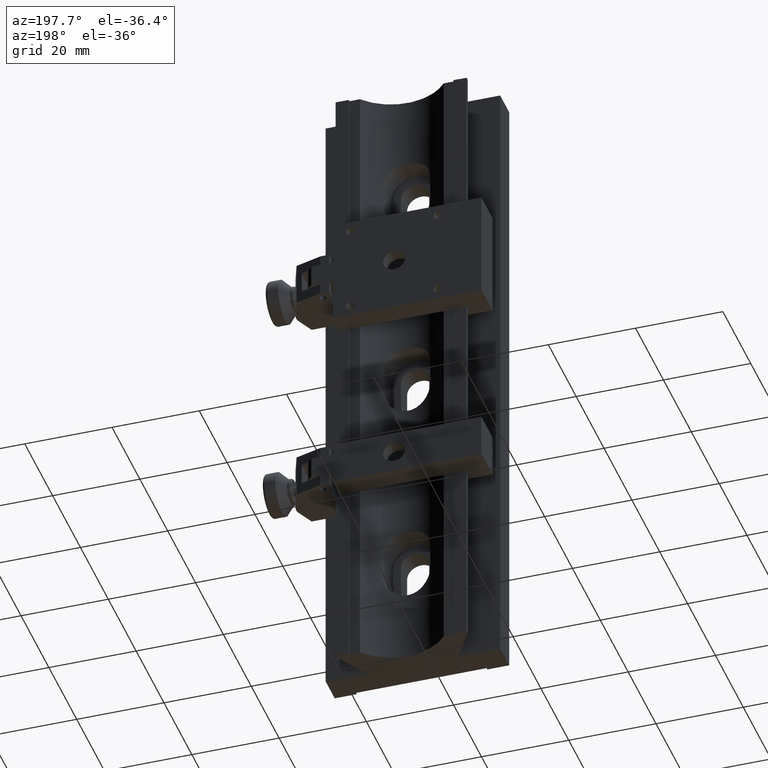
[diagram: clean part render]
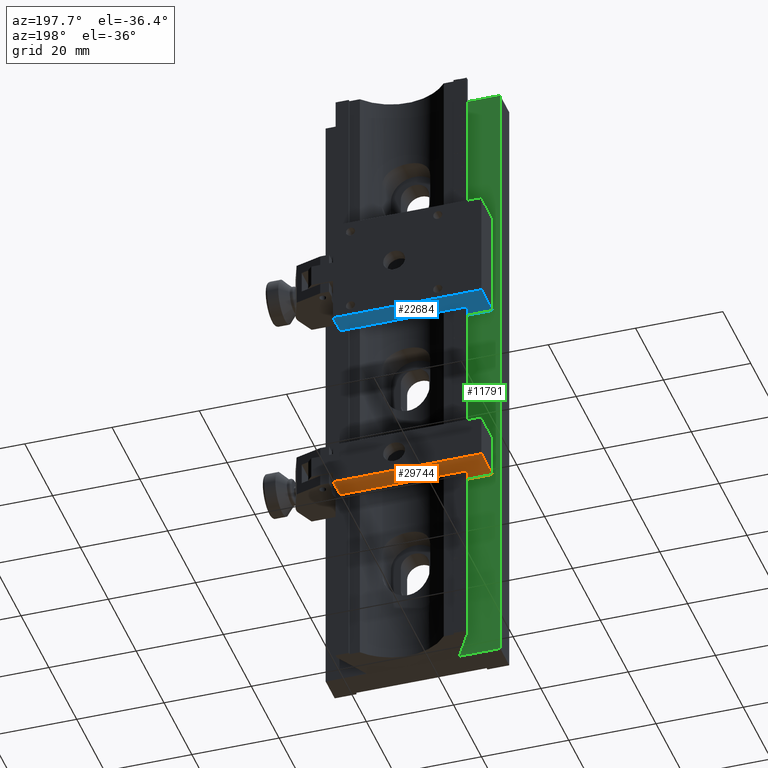
[diagram: same view with three faces highlighted in distinct colors, each labeled with its STEP entity id]
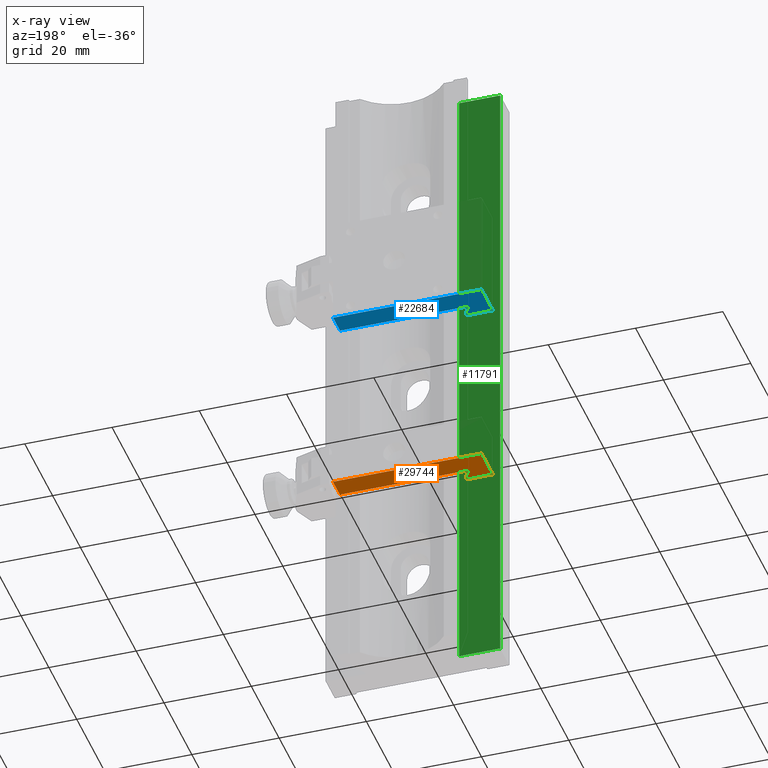
[diagram: x-ray of the same camera — body ghosted, the three highlighted faces saturated]
A machine part, auxiliary view with three faces highlighted in distinct colors.
The next image is the same camera in x-ray (body ghosted, the three faces saturated) — at least one of them is partly hidden behind the body in this view.
Their STEP definitions:

[orange] entity #29744 — the highlighted planar face has unit normal (0, -0, 1).
#50 = DIRECTION ( 'NONE',  ( 0.000000000000000000, 1.000000000000000000, 0.000000000000000000 ) ) ;
#1246 = LINE ( 'NONE', #33715, #22298 ) ;
#1714 = CARTESIAN_POINT ( 'NONE',  ( -161.0211503403899940, 7.134238011305916061, -31.65049300779228147 ) ) ;
#1716 = CARTESIAN_POINT ( 'NONE',  ( -190.5211503403899940, 2.134238011305911176, -31.65049300779228147 ) ) ;
#2634 = ORIENTED_EDGE ( 'NONE', *, *, #15353, .F. ) ;
#4168 = EDGE_CURVE ( 'NONE', #42481, #48827, #35824, .T. ) ;
#5347 = CARTESIAN_POINT ( 'NONE',  ( -161.0211503403899940, 7.134238011305916061, -31.65049300779228147 ) ) ;
#6750 = EDGE_CURVE ( 'NONE', #17772, #34456, #34279, .T. ) ;
#8266 = LINE ( 'NONE', #49873, #20957 ) ;
#8498 = FACE_OUTER_BOUND ( 'NONE', #22739, .T. ) ;
#10032 = DIRECTION ( 'NONE',  ( -0.5000000000000003331, 0.8660254037844383745, 0.000000000000000000 ) ) ;
#10516 = VECTOR ( 'NONE', #17810, 1000.000000000000000 ) ;
#10959 = ORIENTED_EDGE ( 'NONE', *, *, #6750, .F. ) ;
#13000 = LINE ( 'NONE', #17222, #50259 ) ;
#13320 = LINE ( 'NONE', #1714, #10516 ) ;
#14662 = CARTESIAN_POINT ( 'NONE',  ( -161.0211503403899940, 2.134238011305911176, -31.65049300779228147 ) ) ;
#15353 = EDGE_CURVE ( 'NONE', #39760, #17772, #1246, .T. ) ;
#17222 = CARTESIAN_POINT ( 'NONE',  ( -188.9721122347133360, -0.5487746905861179414, -31.65049300779228147 ) ) ;
#17772 = VERTEX_POINT ( 'NONE', #36467 ) ;
#17810 = DIRECTION ( 'NONE',  ( 1.170338304741205908E-16, -1.000000000000000000, 0.000000000000000000 ) ) ;
#18972 = LINE ( 'NONE', #23460, #45059 ) ;
#19582 = PLANE ( 'NONE',  #45505 ) ;
#20141 = ORIENTED_EDGE ( 'NONE', *, *, #39845, .F. ) ;
#20957 = VECTOR ( 'NONE', #10032, 1000.000000000000114 ) ;
#22298 = VECTOR ( 'NONE', #29491, 1000.000000000000000 ) ;
#22403 = ORIENTED_EDGE ( 'NONE', *, *, #4168, .F. ) ;
#22739 = EDGE_LOOP ( 'NONE', ( #23032, #22403, #43950, #52219, #10959, #2634, #20141 ) ) ;
#23032 = ORIENTED_EDGE ( 'NONE', *, *, #40458, .T. ) ;
#23460 = CARTESIAN_POINT ( 'NONE',  ( -195.0211503403899940, 7.134238011305916061, -31.65049300779228147 ) ) ;
#29385 = DIRECTION ( 'NONE',  ( -0.7071067811865474617, -0.7071067811865474617, 9.860761315262639904E-32 ) ) ;
#29491 = DIRECTION ( 'NONE',  ( 0.000000000000000000, -1.000000000000000000, 0.000000000000000000 ) ) ;
#29565 = CARTESIAN_POINT ( 'NONE',  ( -195.0211503403899940, 7.134238011305916061, -31.65049300779228147 ) ) ;
#29744 = ADVANCED_FACE ( 'NONE', ( #8498 ), #19582, .F. ) ;
#33222 = EDGE_CURVE ( 'NONE', #50061, #42481, #8266, .T. ) ;
#33715 = CARTESIAN_POINT ( 'NONE',  ( -195.0211503403899940, 7.134238011305916061, -31.65049300779228147 ) ) ;
#34279 = LINE ( 'NONE', #44894, #38288 ) ;
#34456 = VERTEX_POINT ( 'NONE', #40412 ) ;
#35673 = CARTESIAN_POINT ( 'NONE',  ( -175.0211503403900224, 2.134238011305911176, -31.65049300779228147 ) ) ;
#35824 = LINE ( 'NONE', #51139, #38941 ) ;
#36467 = CARTESIAN_POINT ( 'NONE',  ( -195.0211503403899940, -0.8657619886940914888, -31.65049300779228147 ) ) ;
#38288 = VECTOR ( 'NONE', #44636, 1000.000000000000000 ) ;
#38941 = VECTOR ( 'NONE', #43729, 1000.000000000000000 ) ;
#39760 = VERTEX_POINT ( 'NONE', #29565 ) ;
#39845 = EDGE_CURVE ( 'NONE', #46426, #39760, #18972, .T. ) ;
#40412 = CARTESIAN_POINT ( 'NONE',  ( -189.2890995328210977, -0.8657619886940914888, -31.65049300779228147 ) ) ;
#40458 = EDGE_CURVE ( 'NONE', #46426, #48827, #13320, .T. ) ;
#42106 = EDGE_CURVE ( 'NONE', #50061, #34456, #13000, .T. ) ;
#42481 = VERTEX_POINT ( 'NONE', #1716 ) ;
#43729 = DIRECTION ( 'NONE',  ( 1.000000000000000000, 1.242535447991763963E-32, -2.430865342914508479E-63 ) ) ;
#43950 = ORIENTED_EDGE ( 'NONE', *, *, #33222, .F. ) ;
#44636 = DIRECTION ( 'NONE',  ( 1.000000000000000000, 0.000000000000000000, 0.000000000000000000 ) ) ;
#44894 = CARTESIAN_POINT ( 'NONE',  ( -195.0211503403899940, -0.8657619886940914888, -31.65049300779228147 ) ) ;
#45059 = VECTOR ( 'NONE', #47195, 1000.000000000000000 ) ;
#45505 = AXIS2_PLACEMENT_3D ( 'NONE', #35673, #48315, #50 ) ;
#46426 = VERTEX_POINT ( 'NONE', #5347 ) ;
#47195 = DIRECTION ( 'NONE',  ( -1.000000000000000000, 0.000000000000000000, -0.000000000000000000 ) ) ;
#48315 = DIRECTION ( 'NONE',  ( 0.000000000000000000, -0.000000000000000000, 1.000000000000000000 ) ) ;
#48827 = VERTEX_POINT ( 'NONE', #14662 ) ;
#49873 = CARTESIAN_POINT ( 'NONE',  ( -188.7890995328210977, -0.8657619886940914888, -31.65049300779228147 ) ) ;
#50061 = VERTEX_POINT ( 'NONE', #52193 ) ;
#50259 = VECTOR ( 'NONE', #29385, 1000.000000000000114 ) ;
#51139 = CARTESIAN_POINT ( 'NONE',  ( -190.5211503403899940, 2.134238011305911176, -31.65049300779228147 ) ) ;
#52193 = CARTESIAN_POINT ( 'NONE',  ( -188.9721122347133360, -0.5487746905861179414, -31.65049300779228147 ) ) ;
#52219 = ORIENTED_EDGE ( 'NONE', *, *, #42106, .T. ) ;

[blue] entity #22684 — the highlighted planar face has unit normal (0, 0, 1).
#2248 = DIRECTION ( 'NONE',  ( -0.7071067811865474617, -0.7071067811865474617, -0.000000000000000000 ) ) ;
#3339 = DIRECTION ( 'NONE',  ( -0.5000000000000003331, 0.8660254037844383745, 0.000000000000000000 ) ) ;
#3385 = CARTESIAN_POINT ( 'NONE',  ( -161.0211503403899940, 7.134238011306026195, 12.83903253372700703 ) ) ;
#3633 = EDGE_LOOP ( 'NONE', ( #26921, #17113, #43574, #39537, #42041, #48548, #33609 ) ) ;
#3847 = LINE ( 'NONE', #19957, #36818 ) ;
#5243 = LINE ( 'NONE', #46126, #48477 ) ;
#5471 = LINE ( 'NONE', #21315, #21435 ) ;
#7304 = LINE ( 'NONE', #39491, #18653 ) ;
#7763 = PLANE ( 'NONE',  #18232 ) ;
#7956 = VECTOR ( 'NONE', #2248, 1000.000000000000114 ) ;
#8625 = VERTEX_POINT ( 'NONE', #45168 ) ;
#10674 = CARTESIAN_POINT ( 'NONE',  ( -190.5211503403899940, 2.134238011306022198, 12.83903253372700703 ) ) ;
#11792 = EDGE_CURVE ( 'NONE', #44630, #16045, #22583, .T. ) ;
#11916 = VECTOR ( 'NONE', #39433, 1000.000000000000000 ) ;
#15356 = EDGE_CURVE ( 'NONE', #47383, #49536, #5471, .T. ) ;
#15394 = LINE ( 'NONE', #48656, #11916 ) ;
#16045 = VERTEX_POINT ( 'NONE', #50879 ) ;
#17113 = ORIENTED_EDGE ( 'NONE', *, *, #15356, .F. ) ;
#17380 = DIRECTION ( 'NONE',  ( -1.000000000000000000, 0.000000000000000000, 0.000000000000000000 ) ) ;
#17557 = DIRECTION ( 'NONE',  ( 1.000000000000000000, 0.000000000000000000, 0.000000000000000000 ) ) ;
#18232 = AXIS2_PLACEMENT_3D ( 'NONE', #35741, #32047, #51821 ) ;
#18653 = VECTOR ( 'NONE', #3339, 1000.000000000000114 ) ;
#19957 = CARTESIAN_POINT ( 'NONE',  ( -195.0211503403899940, 7.134238011306026195, 12.83903253372700703 ) ) ;
#21315 = CARTESIAN_POINT ( 'NONE',  ( -190.5211503403899940, 2.134238011306022198, 12.83903253372700703 ) ) ;
#21435 = VECTOR ( 'NONE', #45822, 1000.000000000000000 ) ;
#21496 = CARTESIAN_POINT ( 'NONE',  ( -195.0211503403899940, -0.8657619886939804665, 12.83903253372700703 ) ) ;
#22583 = LINE ( 'NONE', #42103, #7956 ) ;
#22684 = ADVANCED_FACE ( 'NONE', ( #36806 ), #7763, .F. ) ;
#26921 = ORIENTED_EDGE ( 'NONE', *, *, #27480, .T. ) ;
#27070 = EDGE_CURVE ( 'NONE', #44630, #47383, #7304, .T. ) ;
#27480 = EDGE_CURVE ( 'NONE', #50088, #49536, #15394, .T. ) ;
#32047 = DIRECTION ( 'NONE',  ( 0.000000000000000000, 0.000000000000000000, 1.000000000000000000 ) ) ;
#33609 = ORIENTED_EDGE ( 'NONE', *, *, #47812, .F. ) ;
#33859 = CARTESIAN_POINT ( 'NONE',  ( -161.0211503403899940, 2.134238011306022198, 12.83903253372700703 ) ) ;
#35741 = CARTESIAN_POINT ( 'NONE',  ( -175.0211503403900224, 2.134238011306022198, 12.83903253372700703 ) ) ;
#36181 = VERTEX_POINT ( 'NONE', #21496 ) ;
#36806 = FACE_OUTER_BOUND ( 'NONE', #3633, .T. ) ;
#36818 = VECTOR ( 'NONE', #51860, 1000.000000000000000 ) ;
#37552 = VECTOR ( 'NONE', #17557, 1000.000000000000000 ) ;
#39433 = DIRECTION ( 'NONE',  ( 1.170338304741205908E-16, -1.000000000000000000, 0.000000000000000000 ) ) ;
#39491 = CARTESIAN_POINT ( 'NONE',  ( -188.7890995328210977, -0.8657619886939804665, 12.83903253372700703 ) ) ;
#39537 = ORIENTED_EDGE ( 'NONE', *, *, #11792, .T. ) ;
#42041 = ORIENTED_EDGE ( 'NONE', *, *, #50175, .F. ) ;
#42094 = CARTESIAN_POINT ( 'NONE',  ( -195.0211503403899940, -0.8657619886939804665, 12.83903253372700703 ) ) ;
#42103 = CARTESIAN_POINT ( 'NONE',  ( -188.9721122347133360, -0.5487746905860069191, 12.83903253372700703 ) ) ;
#43201 = EDGE_CURVE ( 'NONE', #8625, #36181, #3847, .T. ) ;
#43574 = ORIENTED_EDGE ( 'NONE', *, *, #27070, .F. ) ;
#44630 = VERTEX_POINT ( 'NONE', #46769 ) ;
#45168 = CARTESIAN_POINT ( 'NONE',  ( -195.0211503403899940, 7.134238011306026195, 12.83903253372700703 ) ) ;
#45822 = DIRECTION ( 'NONE',  ( 1.000000000000000000, 1.242535447991763963E-32, 0.000000000000000000 ) ) ;
#46126 = CARTESIAN_POINT ( 'NONE',  ( -195.0211503403899940, 7.134238011306026195, 12.83903253372700703 ) ) ;
#46769 = CARTESIAN_POINT ( 'NONE',  ( -188.9721122347133360, -0.5487746905860069191, 12.83903253372700703 ) ) ;
#47383 = VERTEX_POINT ( 'NONE', #10674 ) ;
#47812 = EDGE_CURVE ( 'NONE', #50088, #8625, #5243, .T. ) ;
#48477 = VECTOR ( 'NONE', #17380, 1000.000000000000000 ) ;
#48548 = ORIENTED_EDGE ( 'NONE', *, *, #43201, .F. ) ;
#48656 = CARTESIAN_POINT ( 'NONE',  ( -161.0211503403899940, 7.134238011306026195, 12.83903253372700703 ) ) ;
#49536 = VERTEX_POINT ( 'NONE', #33859 ) ;
#49743 = LINE ( 'NONE', #42094, #37552 ) ;
#50088 = VERTEX_POINT ( 'NONE', #3385 ) ;
#50175 = EDGE_CURVE ( 'NONE', #36181, #16045, #49743, .T. ) ;
#50879 = CARTESIAN_POINT ( 'NONE',  ( -189.2890995328210977, -0.8657619886939804665, 12.83903253372700703 ) ) ;
#51821 = DIRECTION ( 'NONE',  ( 1.000000000000000000, 0.000000000000000000, 0.000000000000000000 ) ) ;
#51860 = DIRECTION ( 'NONE',  ( 0.000000000000000000, -1.000000000000000000, 0.000000000000000000 ) ) ;

[green] entity #11791 — the highlighted planar face has unit normal (0, -1, 0).
#970 = B_SPLINE_CURVE_WITH_KNOTS ( 'NONE', 3,
 ( #18433, #46646, #11018, #43205 ),
 .UNSPECIFIED., .F., .F.,
 ( 4, 4 ),
 ( 0.000000000000000000, 1.000000000000000000 ),
 .UNSPECIFIED. ) ;
#4469 = VERTEX_POINT ( 'NONE', #17951 ) ;
#6466 = DIRECTION ( 'NONE',  ( 0.000000000000000000, 0.000000000000000000, -1.000000000000000000 ) ) ;
#9255 = CARTESIAN_POINT ( 'NONE',  ( -185.6136730522781306, -6.365761988694000451, 75.00000000000000000 ) ) ;
#10221 = CARTESIAN_POINT ( 'NONE',  ( -195.0211503403899940, -6.365761988694000451, 75.00000000000000000 ) ) ;
#10289 = CARTESIAN_POINT ( 'NONE',  ( -185.6136730522781306, -6.365761988694000451, -75.00000000000000000 ) ) ;
#10678 = CARTESIAN_POINT ( 'NONE',  ( -195.0211503403899940, -6.365761988694000451, 75.00000000000000000 ) ) ;
#11018 = CARTESIAN_POINT ( 'NONE',  ( -191.8853245776860490, -6.365761988694000451, -75.00000000000000000 ) ) ;
#11791 = ADVANCED_FACE ( 'NONE', ( #46057 ), #42870, .F. ) ;
#12085 = EDGE_CURVE ( 'NONE', #4469, #41324, #46616, .T. ) ;
#15078 = ORIENTED_EDGE ( 'NONE', *, *, #21241, .F. ) ;
#15401 = CARTESIAN_POINT ( 'NONE',  ( -185.6136730522781306, -6.365761988694000451, -75.00000000000000000 ) ) ;
#15493 = CARTESIAN_POINT ( 'NONE',  ( -185.6136730522781306, -6.365761988694000451, 75.00000000000000000 ) ) ;
#17244 = EDGE_CURVE ( 'NONE', #22513, #4469, #970, .T. ) ;
#17951 = CARTESIAN_POINT ( 'NONE',  ( -195.0211503403899940, -6.365761988694000451, -75.00000000000000000 ) ) ;
#18433 = CARTESIAN_POINT ( 'NONE',  ( -185.6136730522781306, -6.365761988694000451, -75.00000000000000000 ) ) ;
#20052 = EDGE_CURVE ( 'NONE', #22513, #39862, #42809, .T. ) ;
#21241 = EDGE_CURVE ( 'NONE', #39862, #41324, #45236, .T. ) ;
#22513 = VERTEX_POINT ( 'NONE', #15401 ) ;
#22780 = CARTESIAN_POINT ( 'NONE',  ( -195.0211503403899940, -6.365761988694000451, -25.00000000000000000 ) ) ;
#23987 = CARTESIAN_POINT ( 'NONE',  ( -188.7494988149821040, -6.365761988694000451, 75.00000000000000000 ) ) ;
#24258 = CARTESIAN_POINT ( 'NONE',  ( -185.6136730522781306, -6.365761988694000451, 75.00000000000000000 ) ) ;
#26015 = DIRECTION ( 'NONE',  ( 0.000000000000000000, -1.000000000000000000, 0.000000000000000000 ) ) ;
#27160 = EDGE_LOOP ( 'NONE', ( #48649, #15078, #32234, #39528 ) ) ;
#29319 = CARTESIAN_POINT ( 'NONE',  ( -185.6136730522781306, -6.365761988694000451, -25.00000000000000000 ) ) ;
#30713 = AXIS2_PLACEMENT_3D ( 'NONE', #10678, #26015, #6466 ) ;
#32234 = ORIENTED_EDGE ( 'NONE', *, *, #20052, .F. ) ;
#32430 = CARTESIAN_POINT ( 'NONE',  ( -195.0211503403899940, -6.365761988694000451, 75.00000000000000000 ) ) ;
#37493 = CARTESIAN_POINT ( 'NONE',  ( -185.6136730522781306, -6.365761988694000451, 25.00000000000000000 ) ) ;
#37837 = CARTESIAN_POINT ( 'NONE',  ( -195.0211503403899940, -6.365761988694000451, -75.00000000000000000 ) ) ;
#38345 = CARTESIAN_POINT ( 'NONE',  ( -195.0211503403899940, -6.365761988694000451, 25.00000000000000000 ) ) ;
#38852 = CARTESIAN_POINT ( 'NONE',  ( -195.0211503403899940, -6.365761988694000451, 75.00000000000000000 ) ) ;
#39528 = ORIENTED_EDGE ( 'NONE', *, *, #17244, .T. ) ;
#39862 = VERTEX_POINT ( 'NONE', #15493 ) ;
#40347 = CARTESIAN_POINT ( 'NONE',  ( -191.8853245776860490, -6.365761988694000451, 75.00000000000000000 ) ) ;
#41324 = VERTEX_POINT ( 'NONE', #10221 ) ;
#42809 = B_SPLINE_CURVE_WITH_KNOTS ( 'NONE', 3,
 ( #10289, #29319, #37493, #9255 ),
 .UNSPECIFIED., .F., .F.,
 ( 4, 4 ),
 ( 0.000000000000000000, 1.000000000000000000 ),
 .UNSPECIFIED. ) ;
#42870 = PLANE ( 'NONE',  #30713 ) ;
#43205 = CARTESIAN_POINT ( 'NONE',  ( -195.0211503403899940, -6.365761988694000451, -75.00000000000000000 ) ) ;
#45236 = B_SPLINE_CURVE_WITH_KNOTS ( 'NONE', 3,
 ( #24258, #23987, #40347, #32430 ),
 .UNSPECIFIED., .F., .F.,
 ( 4, 4 ),
 ( 0.000000000000000000, 1.000000000000000000 ),
 .UNSPECIFIED. ) ;
#46057 = FACE_OUTER_BOUND ( 'NONE', #27160, .T. ) ;
#46616 = B_SPLINE_CURVE_WITH_KNOTS ( 'NONE', 3,
 ( #37837, #22780, #38345, #38852 ),
 .UNSPECIFIED., .F., .F.,
 ( 4, 4 ),
 ( 0.000000000000000000, 1.000000000000000000 ),
 .UNSPECIFIED. ) ;
#46646 = CARTESIAN_POINT ( 'NONE',  ( -188.7494988149821040, -6.365761988694000451, -75.00000000000000000 ) ) ;
#48649 = ORIENTED_EDGE ( 'NONE', *, *, #12085, .T. ) ;